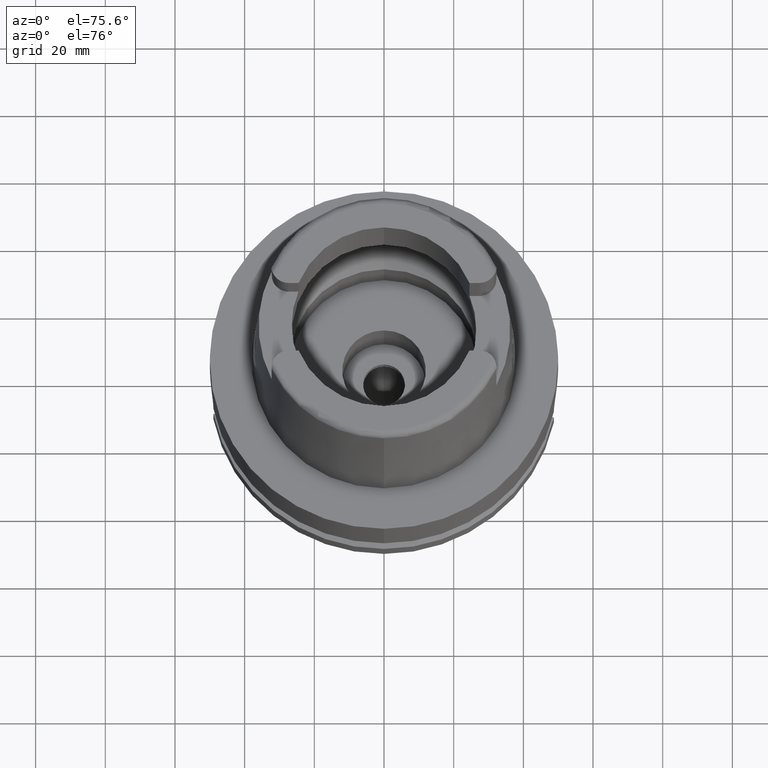
[diagram: clean part render]
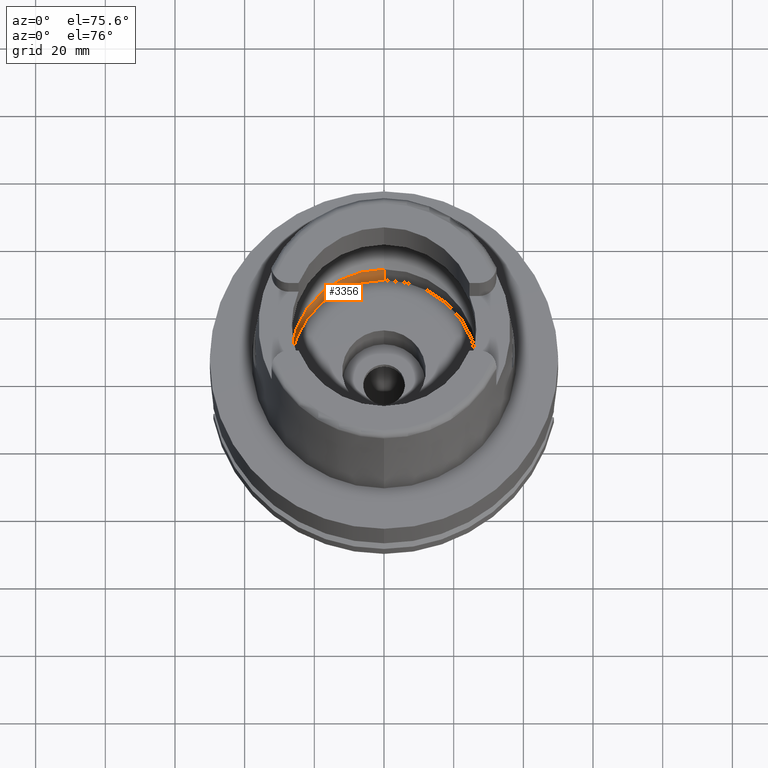
[diagram: same view with one face highlighted and labeled with its STEP entity id]
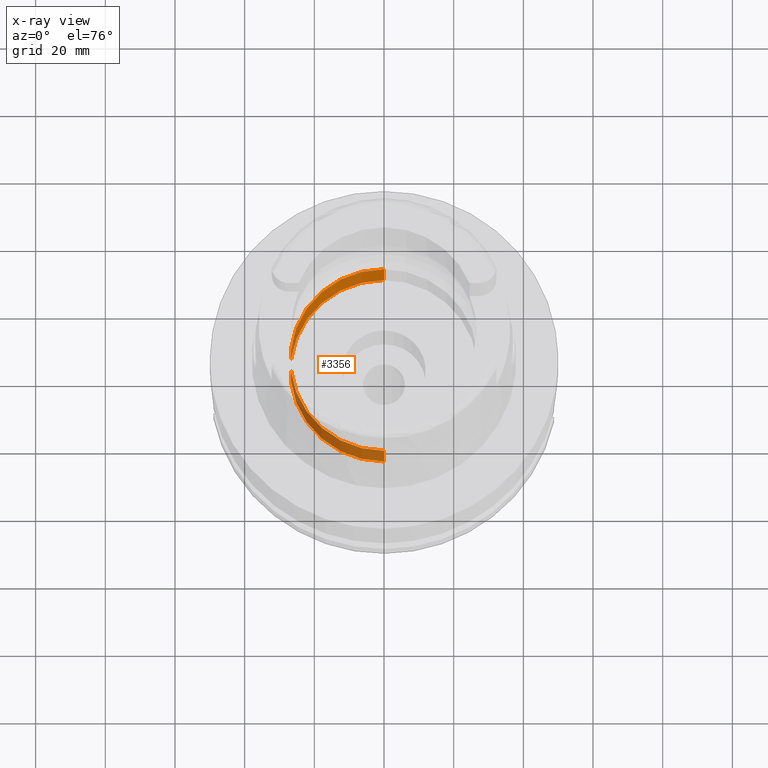
[diagram: x-ray of the same camera — body ghosted, the highlighted face saturated]
A machine part, auxiliary view. The second image highlights one B-rep face of the part: STEP entity #3356.
The next image is the same camera in x-ray: the body ghosted, the highlighted face saturated — about 52% of this face is hidden behind the body in this view.
In plain terms, the highlighted cylindrical surface (partial cylindrical patch) has radius 26.9 mm, axis along (0, 0, -1).
Its self-contained STEP definition (entity closure, byte-faithful):
#918=DIRECTION('',(0.E0,0.E0,1.E0));
#919=VECTOR('',#918,1.245E1);
#920=CARTESIAN_POINT('',(0.E0,2.69E1,-1.245E1));
#921=LINE('',#920,#919);
#925=DIRECTION('',(0.E0,0.E0,1.E0));
#926=VECTOR('',#925,1.245E1);
#927=CARTESIAN_POINT('',(0.E0,-2.69E1,-1.245E1));
#928=LINE('',#927,#926);
#932=CARTESIAN_POINT('',(0.E0,1.932002790335E-14,-1.918465386552E-13));
#933=DIRECTION('',(0.E0,0.E0,-1.E0));
#934=DIRECTION('',(0.E0,-1.E0,0.E0));
#935=AXIS2_PLACEMENT_3D('',#932,#933,#934);
#940=CARTESIAN_POINT('',(0.E0,1.932002790335E-14,-1.245E1));
#941=DIRECTION('',(0.E0,0.E0,-1.E0));
#942=DIRECTION('',(0.E0,-1.E0,0.E0));
#943=AXIS2_PLACEMENT_3D('',#940,#941,#942);
#2642=CARTESIAN_POINT('',(0.E0,-2.69E1,-1.245E1));
#2643=CARTESIAN_POINT('',(0.E0,2.69E1,-1.245E1));
#2644=VERTEX_POINT('',#2642);
#2645=VERTEX_POINT('',#2643);
#2646=CARTESIAN_POINT('',(0.E0,2.69E1,-1.705302565824E-13));
#2647=VERTEX_POINT('',#2646);
#2648=CARTESIAN_POINT('',(0.E0,-2.69E1,-1.705302565824E-13));
#2649=VERTEX_POINT('',#2648);
#3344=CARTESIAN_POINT('',(0.E0,1.932002790335E-14,5.776E1));
#3345=DIRECTION('',(0.E0,0.E0,-1.E0));
#3346=DIRECTION('',(0.E0,-1.E0,0.E0));
#3347=AXIS2_PLACEMENT_3D('',#3344,#3345,#3346);
#3348=CYLINDRICAL_SURFACE('',#3347,2.69E1);
#3349=ORIENTED_EDGE('',*,*,#3334,.F.);
#3351=ORIENTED_EDGE('',*,*,#3350,.F.);
#3352=ORIENTED_EDGE('',*,*,#3337,.T.);
#3353=ORIENTED_EDGE('',*,*,#3308,.T.);
#3354=EDGE_LOOP('',(#3349,#3351,#3352,#3353));
#3355=FACE_OUTER_BOUND('',#3354,.F.);
#936=CIRCLE('',#935,2.69E1);
#944=CIRCLE('',#943,2.69E1);
#3308=EDGE_CURVE('',#2649,#2647,#936,.T.);
#3334=EDGE_CURVE('',#2645,#2647,#921,.T.);
#3337=EDGE_CURVE('',#2644,#2649,#928,.T.);
#3350=EDGE_CURVE('',#2644,#2645,#944,.T.);
#3356=ADVANCED_FACE('',(#3355),#3348,.F.);